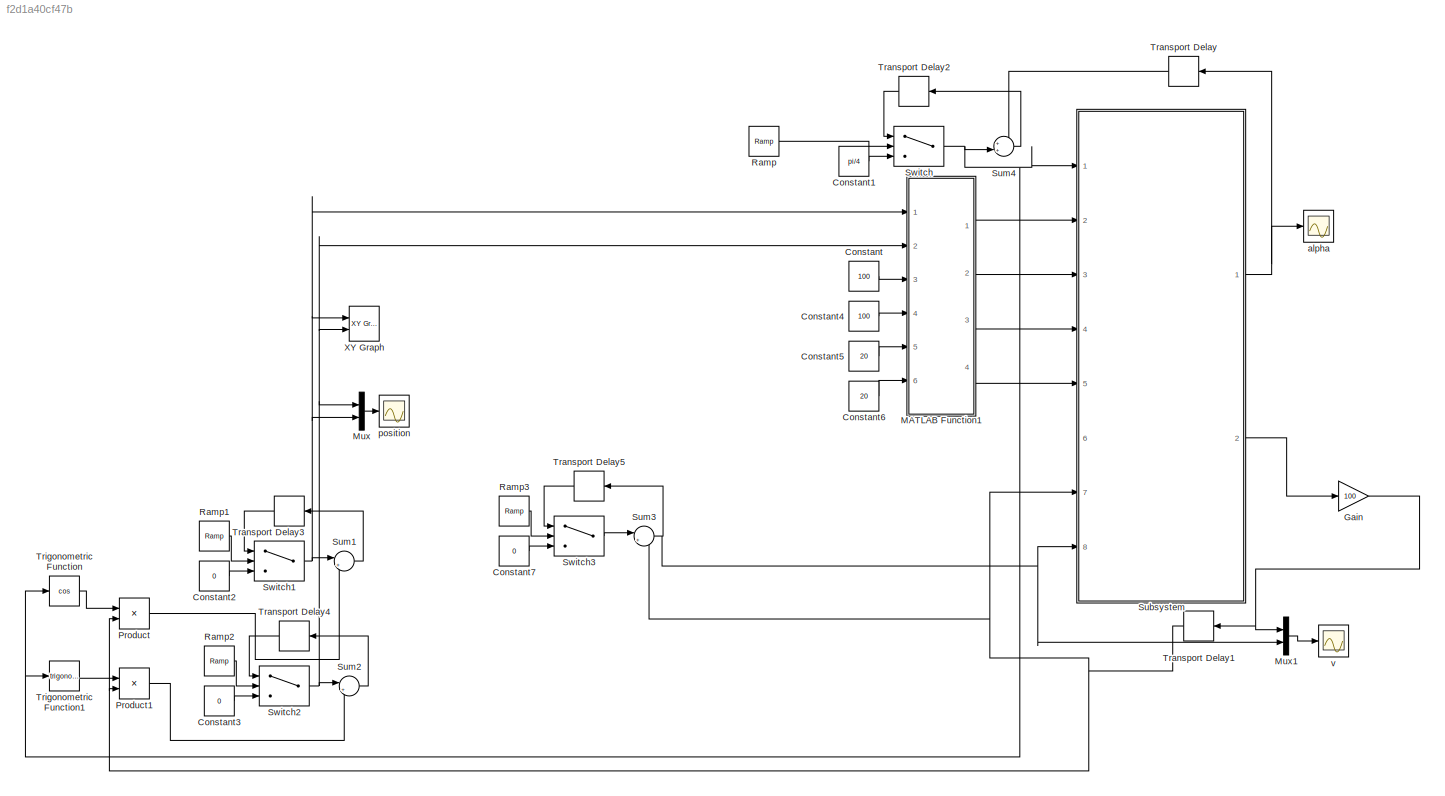
MODEL slx_f2d1a40cf47b
KIND model
CONFIG AbsTol = auto
CONFIG FixedStep = auto
CONFIG MaxStep = auto
CONFIG MinStep = auto
CONFIG RelTol = 1e-3
CONFIG SampleTimeConstraint = Unconstrained
CONFIG Solver = VariableStepAuto
CONFIG SolverMode = Auto
CONFIG SolverName = VariableStepAuto
CONFIG StartTime = 0.0
CONFIG StopTime = 50
BLOCK [Constant] Constant
  Value = 100
BLOCK [Constant] Constant1
  Value = pi/4
BLOCK [Constant] Constant2
  Value = 0
BLOCK [Constant] Constant3
  Value = 0
BLOCK [Constant] Constant4
  Value = 100
BLOCK [Constant] Constant5
  Value = 20
BLOCK [Constant] Constant6
  Value = 20
BLOCK [Constant] Constant7
  Value = 0
BLOCK [Gain] Gain
  Gain = 100
  OutDataTypeStr = Inherit: Inherit via internal rule
  ParamDataTypeStr = Inherit: Inherit via internal rule
  SaturateOnIntegerOverflow = off
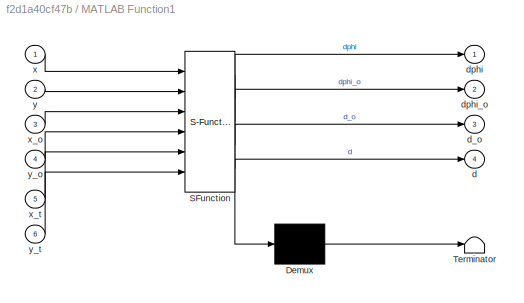
BLOCK [SubSystem] MATLAB Function1
  ErrorFcn = Stateflow.Translate.translate
  PermitHierarchicalResolution = ParametersOnly
  Ports = [6, 4]
  RequestExecContextInheritance = off
  SFBlockType = MATLAB Function
  TreatAsAtomicUnit = on
  Variant = off
BLOCK [Demux] MATLAB Function1/ Demux 
  Outputs = 1
  Ports = [1, 1]
BLOCK [S-Function] MATLAB Function1/ SFunction 
  EnableBusSupport = on
  FunctionName = sf_sfun
  PortCounts = [6 5]
  Ports = [6, 5]
  SFunctionDeploymentMode = off
  Tag = Stateflow S-Function rules2015 1
BLOCK [Terminator] MATLAB Function1/ Terminator 
BLOCK [Outport] MATLAB Function1/d
  IconDisplay = Port number
  Port = 4
BLOCK [Outport] MATLAB Function1/d_o
  IconDisplay = Port number
  Port = 3
BLOCK [Outport] MATLAB Function1/dphi
  IconDisplay = Port number
BLOCK [Outport] MATLAB Function1/dphi_o
  IconDisplay = Port number
  Port = 2
BLOCK [Inport] MATLAB Function1/x
  IconDisplay = Port number
BLOCK [Inport] MATLAB Function1/x_o
  IconDisplay = Port number
  Port = 3
BLOCK [Inport] MATLAB Function1/x_t
  IconDisplay = Port number
  Port = 5
BLOCK [Inport] MATLAB Function1/y
  IconDisplay = Port number
  Port = 2
BLOCK [Inport] MATLAB Function1/y_o
  IconDisplay = Port number
  Port = 4
BLOCK [Inport] MATLAB Function1/y_t
  IconDisplay = Port number
  Port = 6
BLOCK [Mux] Mux
  DisplayOption = bar
  Inputs = 2
  Ports = [2, 1]
BLOCK [Mux] Mux1
  DisplayOption = bar
  Inputs = 2
  Ports = [2, 1]
BLOCK [Product] Product
  InputSameDT = off
  OutDataTypeStr = Inherit: Inherit via internal rule
  Ports = [2, 1]
  RndMeth = Floor
  SaturateOnIntegerOverflow = off
BLOCK [Product] Product1
  InputSameDT = off
  OutDataTypeStr = Inherit: Inherit via internal rule
  Ports = [2, 1]
  RndMeth = Floor
  SaturateOnIntegerOverflow = off
BLOCK [Reference] Ramp  REF=simulink/Sources/Ramp
  Ports = [0, 1]
  SourceBlock = simulink/Sources/Ramp
  SourceType = Ramp
BLOCK [Reference] Ramp1  REF=simulink/Sources/Ramp
  Ports = [0, 1]
  SourceBlock = simulink/Sources/Ramp
  SourceType = Ramp
BLOCK [Reference] Ramp2  REF=simulink/Sources/Ramp
  Ports = [0, 1]
  SourceBlock = simulink/Sources/Ramp
  SourceType = Ramp
BLOCK [Reference] Ramp3  REF=simulink/Sources/Ramp
  Ports = [0, 1]
  SourceBlock = simulink/Sources/Ramp
  SourceType = Ramp
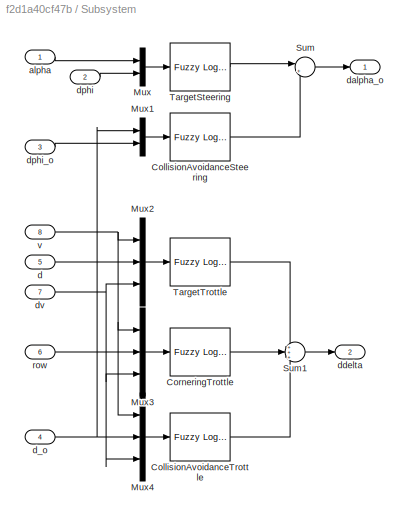
BLOCK [SubSystem] Subsystem
  Ports = [8, 2]
  RequestExecContextInheritance = off
  Variant = off
BLOCK [Reference] Subsystem/CollisionAvoidanceSteering   REF=fuzblock/Fuzzy Logic   (lib defined in mdl_858b3b3e7478)
Controller
  Ports = [1, 1]
  SourceBlock = fuzblock/Fuzzy Logic \nController
  SourceType = FIS
BLOCK [Reference] Subsystem/CollisionAvoidanceTrottle   REF=fuzblock/Fuzzy Logic   (lib defined in mdl_858b3b3e7478)
Controller
  Ports = [1, 1]
  SourceBlock = fuzblock/Fuzzy Logic \nController
  SourceType = FIS
BLOCK [Reference] Subsystem/CorneringTrottle   REF=fuzblock/Fuzzy Logic   (lib defined in mdl_858b3b3e7478)
Controller
  Ports = [1, 1]
  SourceBlock = fuzblock/Fuzzy Logic \nController
  SourceType = FIS
BLOCK [Mux] Subsystem/Mux
  DisplayOption = bar
  Inputs = 2
  Ports = [2, 1]
BLOCK [Mux] Subsystem/Mux1
  DisplayOption = bar
  Inputs = 2
  Ports = [2, 1]
BLOCK [Mux] Subsystem/Mux2
  DisplayOption = bar
  Inputs = 3
  Ports = [3, 1]
BLOCK [Mux] Subsystem/Mux3
  DisplayOption = bar
  Inputs = 3
  Ports = [3, 1]
BLOCK [Mux] Subsystem/Mux4
  DisplayOption = bar
  Inputs = 3
  Ports = [3, 1]
BLOCK [Sum] Subsystem/Sum
  IconShape = round
  InputSameDT = off
  Inputs = |++
  OutDataTypeStr = Inherit: Inherit via internal rule
  Ports = [2, 1]
  SaturateOnIntegerOverflow = off
BLOCK [Sum] Subsystem/Sum1
  IconShape = round
  InputSameDT = off
  Inputs = +++
  OutDataTypeStr = Inherit: Inherit via internal rule
  Ports = [3, 1]
  SaturateOnIntegerOverflow = off
BLOCK [Reference] Subsystem/TargetSteering  REF=fuzblock/Fuzzy Logic   (lib defined in mdl_858b3b3e7478)
Controller
  Ports = [1, 1]
  SourceBlock = fuzblock/Fuzzy Logic \nController
  SourceType = FIS
BLOCK [Reference] Subsystem/TargetTrottle  REF=fuzblock/Fuzzy Logic   (lib defined in mdl_858b3b3e7478)
Controller
  Ports = [1, 1]
  SourceBlock = fuzblock/Fuzzy Logic \nController
  SourceType = FIS
BLOCK [Inport] Subsystem/alpha
  IconDisplay = Port number
BLOCK [Inport] Subsystem/d
  IconDisplay = Port number
  Port = 5
BLOCK [Inport] Subsystem/d_o
  IconDisplay = Port number
  Port = 4
BLOCK [Outport] Subsystem/dalpha_o 
  IconDisplay = Port number
BLOCK [Outport] Subsystem/ddelta
  IconDisplay = Port number
  Port = 2
BLOCK [Inport] Subsystem/dphi 
  IconDisplay = Port number
  Port = 2
BLOCK [Inport] Subsystem/dphi_o 
  IconDisplay = Port number
  Port = 3
BLOCK [Inport] Subsystem/dv
  IconDisplay = Port number
  Port = 7
BLOCK [Inport] Subsystem/row
  IconDisplay = Port number
  Port = 6
BLOCK [Inport] Subsystem/v
  IconDisplay = Port number
  Port = 8
BLOCK [Sum] Sum1
  IconShape = round
  InputSameDT = off
  Inputs = |++
  OutDataTypeStr = Inherit: Inherit via internal rule
  Ports = [2, 1]
  SaturateOnIntegerOverflow = off
BLOCK [Sum] Sum2
  IconShape = round
  InputSameDT = off
  Inputs = |++
  OutDataTypeStr = Inherit: Inherit via internal rule
  Ports = [2, 1]
  SaturateOnIntegerOverflow = off
BLOCK [Sum] Sum3
  IconShape = round
  InputSameDT = off
  Inputs = |++
  OutDataTypeStr = Inherit: Inherit via internal rule
  Ports = [2, 1]
  SaturateOnIntegerOverflow = off
BLOCK [Sum] Sum4
  IconShape = round
  InputSameDT = off
  Inputs = ++|
  OutDataTypeStr = Inherit: Inherit via internal rule
  Ports = [2, 1]
  SaturateOnIntegerOverflow = off
BLOCK [Switch] Switch
  Criteria = u2 > Threshold
  InputSameDT = off
  SaturateOnIntegerOverflow = off
  Threshold = 2
BLOCK [Switch] Switch1
  Criteria = u2 > Threshold
  InputSameDT = off
  SaturateOnIntegerOverflow = off
  Threshold = 2
BLOCK [Switch] Switch2
  Criteria = u2 > Threshold
  InputSameDT = off
  SaturateOnIntegerOverflow = off
  Threshold = 2
BLOCK [Switch] Switch3
  Criteria = u2 > Threshold
  InputSameDT = off
  SaturateOnIntegerOverflow = off
  Threshold = 2
BLOCK [TransportDelay] Transport Delay
  DelayTime = 0.001
  Ports = [1, 1]
  TransDelayFeedthrough = on
BLOCK [TransportDelay] Transport Delay1
  Ports = [1, 1]
BLOCK [TransportDelay] Transport Delay2
  Ports = [1, 1]
  TransDelayFeedthrough = on
BLOCK [TransportDelay] Transport Delay3
  Ports = [1, 1]
BLOCK [TransportDelay] Transport Delay4
  Ports = [1, 1]
BLOCK [TransportDelay] Transport Delay5
  Ports = [1, 1]
BLOCK [Trigonometry] Trigonometric Function
  Operator = cos
  Ports = [1, 1]
BLOCK [Trigonometry] Trigonometric Function1
  Ports = [1, 1]
BLOCK [Reference] XY Graph  REF=simulink/Sinks/XY Graph
  Ports = [2]
  SourceBlock = simulink/Sinks/XY Graph
  SourceType = XY scope.
BLOCK [Scope] alpha
  Ports = [1]
  ScopeSpecificationString = Simulink.scopes.TimeScopeBlockCfg('CurrentConfiguration', extmgr.ConfigurationSet(extmgr.Configuration('Core','General UI',true),extmgr.Configuration('Core','Source UI',true),extmgr.Configuration('Sources','WiredSimulink',true),extmgr.Configuration('Visuals','Time Domain',true,'SerializedDisplays',{struct('MinYLimReal','-0.05652','MaxYLimReal','0.50869','YLabelReal','','MinYLimMag','0.00000','MaxY...<+1386ch>
BLOCK [Scope] position
  Ports = [1]
  ScopeSpecificationString = Simulink.scopes.TimeScopeBlockCfg('CurrentConfiguration', extmgr.ConfigurationSet(extmgr.Configuration('Core','General UI',true),extmgr.Configuration('Core','Source UI',true),extmgr.Configuration('Sources','WiredSimulink',true,'DataLoggingVariableName','ScopeData1'),extmgr.Configuration('Visuals','Time Domain',true,'SerializedDisplays',{struct('MinYLimReal','-1.71668','MaxYLimReal','4.90844','YLab...<+1431ch>
BLOCK [Scope] v
  Ports = [1]
  ScopeSpecificationString = Simulink.scopes.TimeScopeBlockCfg('CurrentConfiguration', extmgr.ConfigurationSet(extmgr.Configuration('Core','General UI',true),extmgr.Configuration('Core','Source UI',true),extmgr.Configuration('Sources','WiredSimulink',true,'DataLoggingVariableName','ScopeData2'),extmgr.Configuration('Visuals','Time Domain',true,'SerializedDisplays',{struct('MinYLimReal','-9.279','MaxYLimReal','7.30213','YLabel...<+1404ch>
LINE Constant1:1 -> Switch:3
LINE Constant2:1 -> Switch1:3
LINE Constant3:1 -> Switch2:3
LINE Constant4:1 -> MATLAB Function1:4
LINE Constant5:1 -> MATLAB Function1:5
LINE Constant6:1 -> MATLAB Function1:6
LINE Constant7:1 -> Switch3:3
LINE Constant:1 -> MATLAB Function1:3
NET Gain:1 -> Mux1:1, Transport Delay1:1
LINE MATLAB Function1:1 -> Subsystem:2
LINE MATLAB Function1:2 -> Subsystem:3
LINE MATLAB Function1:3 -> Subsystem:4
LINE MATLAB Function1:4 -> Subsystem:5
LINE Mux1:1 -> v:1
LINE Mux:1 -> position:1
LINE Product1:1 -> Sum2:2
LINE Product:1 -> Sum1:2
LINE Ramp1:1 -> Switch1:2
LINE Ramp2:1 -> Switch2:2
LINE Ramp3:1 -> Switch3:2
LINE Ramp:1 -> Switch:2
LINE Subsystem/CollisionAvoidanceSteering :1 -> Subsystem/Sum:2
LINE Subsystem/CollisionAvoidanceTrottle :1 -> Subsystem/Sum1:3
LINE Subsystem/CorneringTrottle :1 -> Subsystem/Sum1:2
LINE Subsystem/Mux1:1 -> Subsystem/CollisionAvoidanceSteering :1
LINE Subsystem/Mux2:1 -> Subsystem/TargetTrottle:1
LINE Subsystem/Mux3:1 -> Subsystem/CorneringTrottle :1
LINE Subsystem/Mux4:1 -> Subsystem/CollisionAvoidanceTrottle :1
LINE Subsystem/Mux:1 -> Subsystem/TargetSteering:1
LINE Subsystem/Sum1:1 -> Subsystem/ddelta:1
LINE Subsystem/Sum:1 -> Subsystem/dalpha_o :1
LINE Subsystem/TargetSteering:1 -> Subsystem/Sum:1
LINE Subsystem/TargetTrottle:1 -> Subsystem/Sum1:1
LINE Subsystem/alpha:1 -> Subsystem/Mux:1
LINE Subsystem/d:1 -> Subsystem/Mux2:2
NET Subsystem/d_o:1 -> Subsystem/Mux1:1, Subsystem/Mux4:2
LINE Subsystem/dphi :1 -> Subsystem/Mux:2
LINE Subsystem/dphi_o :1 -> Subsystem/Mux1:2
NET Subsystem/dv:1 -> Subsystem/Mux2:3, Subsystem/Mux3:3, Subsystem/Mux4:3
LINE Subsystem/row:1 -> Subsystem/Mux3:2
NET Subsystem/v:1 -> Subsystem/Mux2:1, Subsystem/Mux3:1, Subsystem/Mux4:1
NET Subsystem:1 -> Transport Delay:1, alpha:1
LINE Subsystem:2 -> Gain:1
LINE Sum1:1 -> Transport Delay3:1
LINE Sum2:1 -> Transport Delay4:1
NET Sum3:1 -> Mux1:2, Subsystem:8, Transport Delay5:1
LINE Sum4:1 -> Transport Delay2:1
NET Switch1:1 -> MATLAB Function1:1, Mux:2, Sum1:1, XY Graph:1
NET Switch2:1 -> MATLAB Function1:2, Mux:1, Sum2:1, XY Graph:2
LINE Switch3:1 -> Sum3:1
NET Switch:1 -> Subsystem:1, Sum4:2, Trigonometric Function1:1, Trigonometric Function:1
NET Transport Delay1:1 -> Product1:2, Product:2, Subsystem:7, Sum3:2
LINE Transport Delay2:1 -> Switch:1
LINE Transport Delay3:1 -> Switch1:1
LINE Transport Delay4:1 -> Switch2:1
LINE Transport Delay5:1 -> Switch3:1
LINE Transport Delay:1 -> Sum4:1
LINE Trigonometric Function1:1 -> Product1:1
LINE Trigonometric Function:1 -> Product:1
note: NET lines group one-source signal fan-out (src -> all destinations, sorted); 1:1 wires keep LINE
CHART MATLAB Function1 states=1 transitions=1
  STATE_LABEL 'eML_blk_kernel()'
  STATE_LABEL 'SCRIPT:\nfunction [dphi,dphi_o,d_o,d] = fcn(x,y,x_o,y_o,x_t,y_t)\n\n if ((x_t-x) < 0)\n     dphi = atan ((y_t-y)/(x_t-x))+pi;\n else \n    dphi = atan ((y_t-y)/(x_t-x));\n end\n \n if ((x_o-x) < 0)\n     dphi_o = atan ((y_o-y)/(x_o-x));+pi;\n else \n    dphi_o = atan ((y_o-y)/(x_o-x));\n end\n\n\nd_o = norm([(x_o-x),(y_o-y)]);\nd = norm([(x_t-x),(y_t-y)]);'
